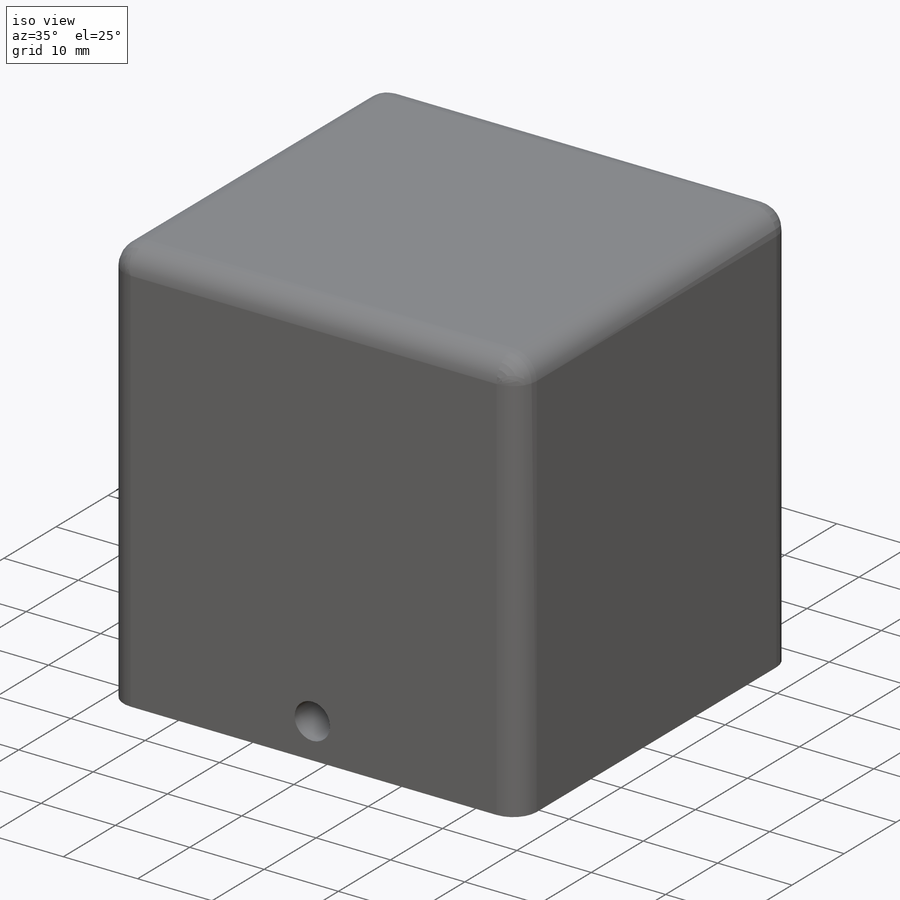
[diagram: iso view]
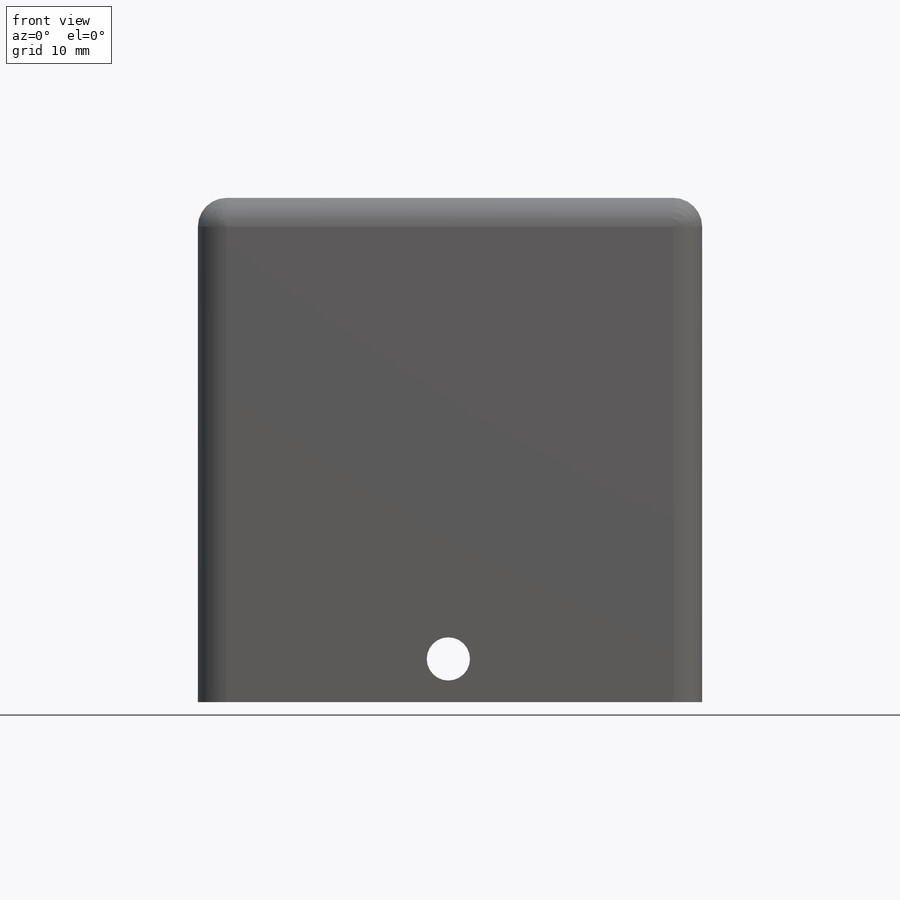
[diagram: front view]
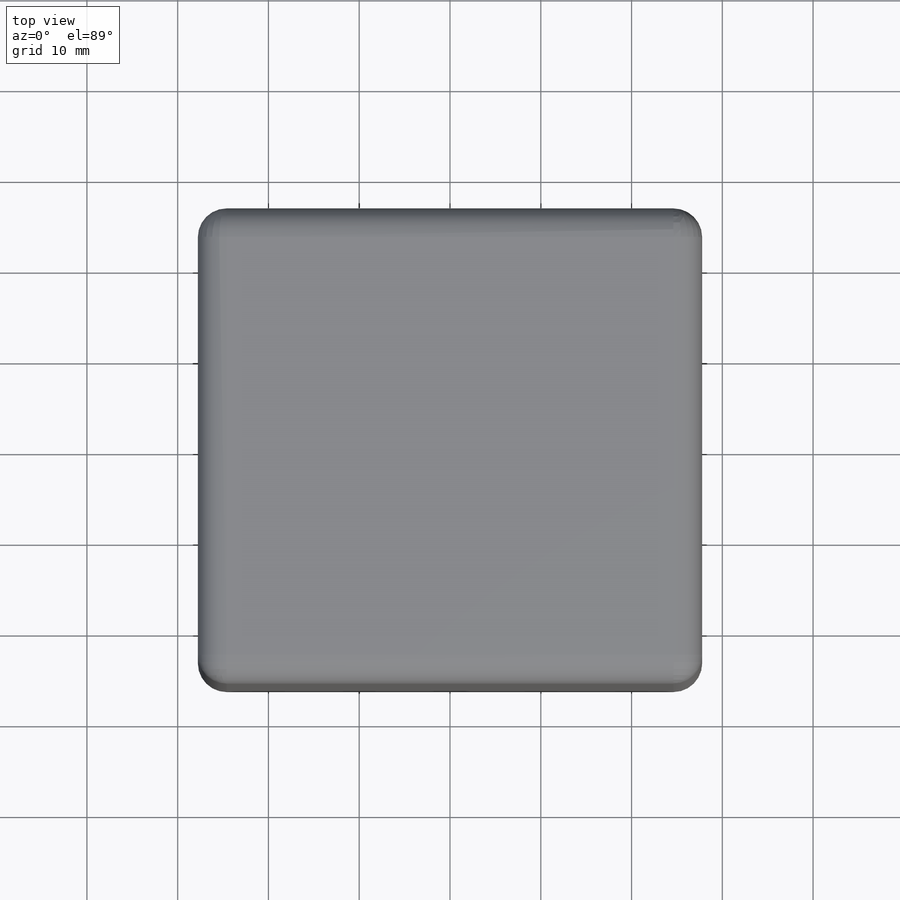
[diagram: top view]
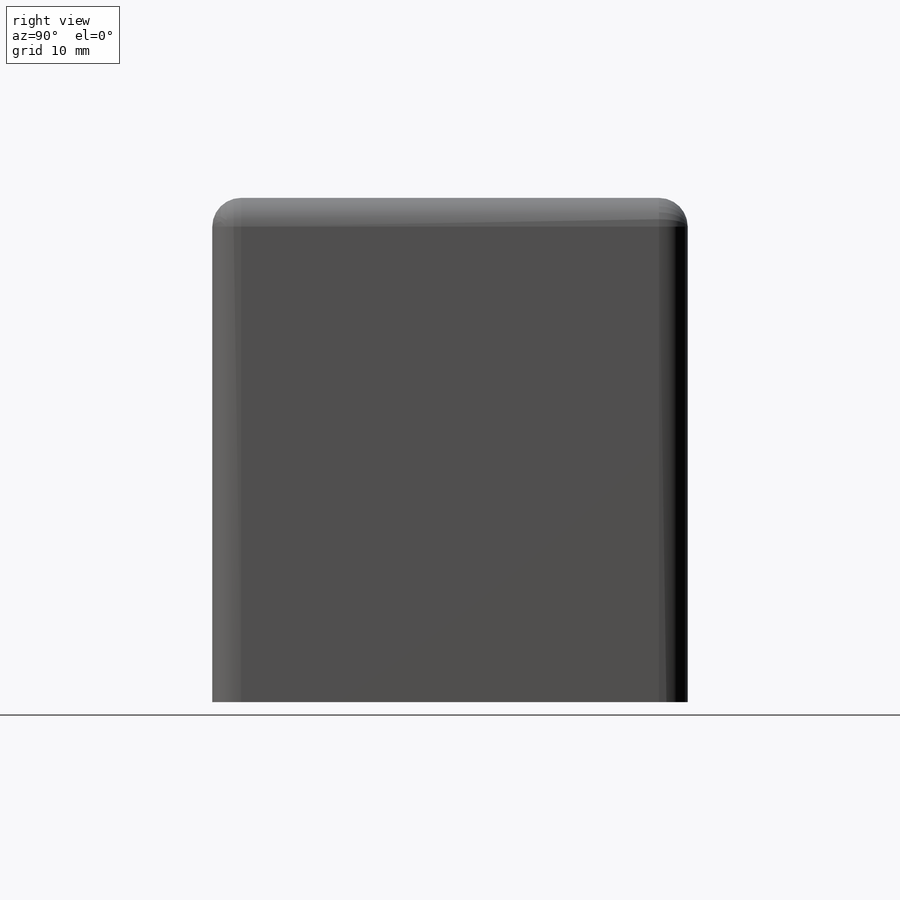
[diagram: right view]
SOLIDWORKS PART (.sldprt)
format: sldprt  version: not decoded by parser v0  size: 268,800 bytes
history: native  units: mm
features: sketch x4, material x1, extrude x1, fillet x1, hole x1 (+12 scaffold rows collapsed)
feature tree (20):
  scaffold x12  (default folders/planes/origin — collapsed)
  material  "Material <not specified>"
  sketch  "Sketch1"
  sketch  "param"  dims[D1=55.5625mm D2=55.5625mm]
  extrude  "Extrude1"  Depth=52.3875mm
  fillet  "Fillet1"  Radius=3.175mm
  hole  "3/16 (0.1875) Diameter Hole1"  Diameter=4.7625mm Depth=52.3875mm
  sketch  "3DSketch1"  dims[D1=~27.78252mm D2=4.7625mm]
  sketch  "Sketch3"  dims[hole-wizard template sketch: 60 standard entries collapsed; hole parameters kept: c18.Thru Hole Depth=52.3875mm]
decode coverage: 6 of 7 modeling features carry decoded parameters
note: ~ marks probable driven/reference dimensions
note: suppression state not decoded; provenance and decode notes live in map.json
